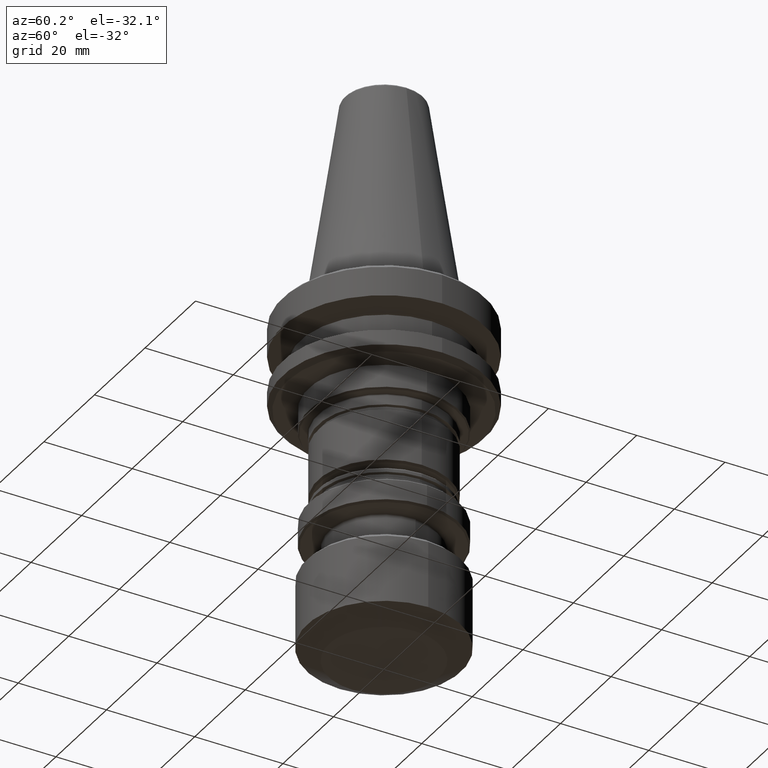
[diagram: clean part render]
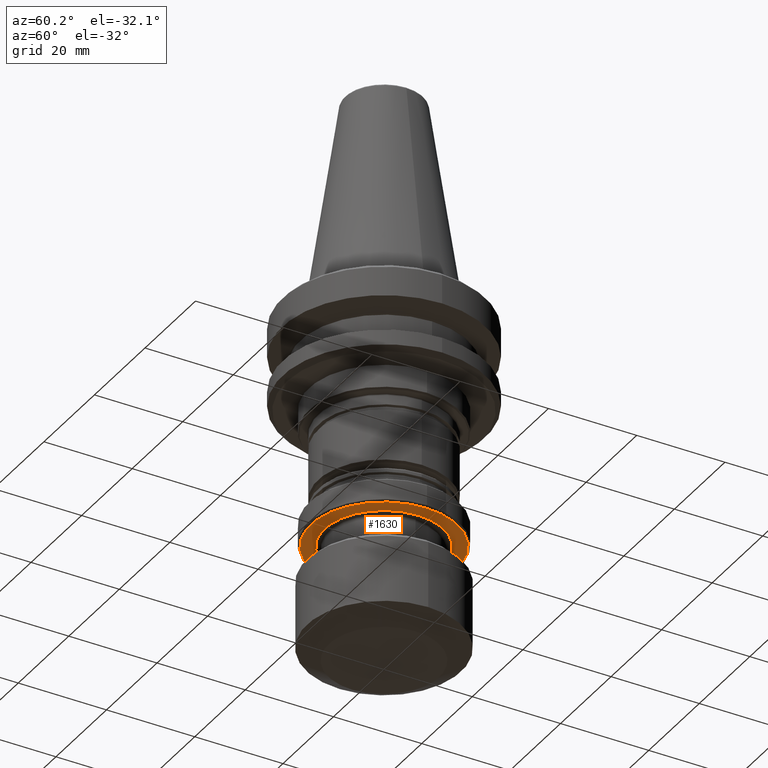
[diagram: same view with one face highlighted and labeled with its STEP entity id]
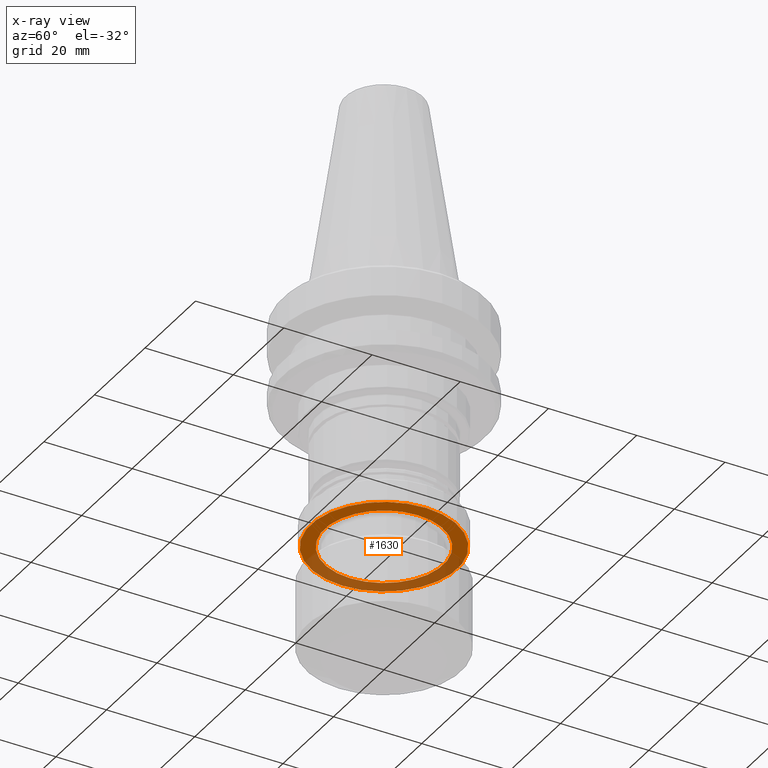
[diagram: x-ray of the same camera — body ghosted, the highlighted face saturated]
A machine part, auxiliary view. The second image highlights one B-rep face of the part: STEP entity #1630.
The next image is the same camera in x-ray: the body ghosted, the highlighted face saturated — about 41% of this face is hidden behind the body in this view.
In plain terms, the highlighted planar face has unit normal (0, 0, -1).
Its self-contained STEP definition (entity closure, byte-faithful):
#111 = AXIS2_PLACEMENT_3D ( 'NONE', #1871, #1109, #1335 ) ;
#126 = ORIENTED_EDGE ( 'NONE', *, *, #1217, .F. ) ;
#195 = CIRCLE ( 'NONE', #1224, 16.59999999999772800 ) ;
#268 = CIRCLE ( 'NONE', #2219, 16.59999999999772800 ) ;
#326 = EDGE_CURVE ( 'NONE', #1941, #1113, #1896, .T. ) ;
#393 = CARTESIAN_POINT ( 'NONE',  ( 16.59999999999772800, 0.0000000000000000000, -53.60000000000009400 ) ) ;
#420 = DIRECTION ( 'NONE',  ( -0.0000000000000000000, -0.0000000000000000000, 1.000000000000000000 ) ) ;
#465 = DIRECTION ( 'NONE',  ( 1.000000000000000000, 0.0000000000000000000, 0.0000000000000000000 ) ) ;
#492 = CIRCLE ( 'NONE', #2116, 13.45000000000229400 ) ;
#511 = EDGE_LOOP ( 'NONE', ( #1784, #824 ) ) ;
#535 = VERTEX_POINT ( 'NONE', #393 ) ;
#736 = DIRECTION ( 'NONE',  ( 1.000000000000000000, 0.0000000000000000000, 0.0000000000000000000 ) ) ;
#824 = ORIENTED_EDGE ( 'NONE', *, *, #2208, .T. ) ;
#972 = VERTEX_POINT ( 'NONE', #1011 ) ;
#984 = EDGE_CURVE ( 'NONE', #535, #972, #195, .T. ) ;
#985 = DIRECTION ( 'NONE',  ( 1.000000000000000000, 0.0000000000000000000, 0.0000000000000000000 ) ) ;
#990 = DIRECTION ( 'NONE',  ( -0.0000000000000000000, -0.0000000000000000000, 1.000000000000000000 ) ) ;
#1011 = CARTESIAN_POINT ( 'NONE',  ( -16.59999999999772800, 2.057406622567285700E-015, -53.60000000000009400 ) ) ;
#1052 = EDGE_LOOP ( 'NONE', ( #2214, #126 ) ) ;
#1067 = AXIS2_PLACEMENT_3D ( 'NONE', #2059, #2135, #985 ) ;
#1109 = DIRECTION ( 'NONE',  ( 0.0000000000000000000, 0.0000000000000000000, -1.000000000000000000 ) ) ;
#1113 = VERTEX_POINT ( 'NONE', #2110 ) ;
#1217 = EDGE_CURVE ( 'NONE', #972, #535, #268, .T. ) ;
#1224 = AXIS2_PLACEMENT_3D ( 'NONE', #1906, #420, #465 ) ;
#1234 = PLANE ( 'NONE',  #111 ) ;
#1243 = DIRECTION ( 'NONE',  ( -0.0000000000000000000, -0.0000000000000000000, 1.000000000000000000 ) ) ;
#1252 = CARTESIAN_POINT ( 'NONE',  ( 0.0000000000000000000, 0.0000000000000000000, -53.60000000000009400 ) ) ;
#1335 = DIRECTION ( 'NONE',  ( -1.000000000000000000, 0.0000000000000000000, -0.0000000000000000000 ) ) ;
#1383 = CARTESIAN_POINT ( 'NONE',  ( 13.45000000000218200, 0.0000000000000000000, -53.59999999999984500 ) ) ;
#1615 = FACE_OUTER_BOUND ( 'NONE', #1052, .T. ) ;
#1630 = ADVANCED_FACE ( 'NONE', ( #1910, #1615 ), #1234, .T. ) ;
#1675 = CARTESIAN_POINT ( 'NONE',  ( 0.0000000000000000000, 0.0000000000000000000, -53.60000000000009400 ) ) ;
#1784 = ORIENTED_EDGE ( 'NONE', *, *, #326, .T. ) ;
#1871 = CARTESIAN_POINT ( 'NONE',  ( 0.0000000000000000000, 0.0000000000000000000, -53.60000000000009400 ) ) ;
#1896 = CIRCLE ( 'NONE', #1067, 13.45000000000229400 ) ;
#1906 = CARTESIAN_POINT ( 'NONE',  ( 0.0000000000000000000, 0.0000000000000000000, -53.60000000000009400 ) ) ;
#1910 = FACE_BOUND ( 'NONE', #511, .T. ) ;
#1941 = VERTEX_POINT ( 'NONE', #1383 ) ;
#2016 = DIRECTION ( 'NONE',  ( 1.000000000000000000, 0.0000000000000000000, 0.0000000000000000000 ) ) ;
#2059 = CARTESIAN_POINT ( 'NONE',  ( 0.0000000000000000000, 0.0000000000000000000, -53.60000000000009400 ) ) ;
#2110 = CARTESIAN_POINT ( 'NONE',  ( -13.45000000000218200, 1.647149944853457400E-015, -53.59999999999984500 ) ) ;
#2116 = AXIS2_PLACEMENT_3D ( 'NONE', #1675, #990, #2016 ) ;
#2135 = DIRECTION ( 'NONE',  ( -0.0000000000000000000, -0.0000000000000000000, 1.000000000000000000 ) ) ;
#2208 = EDGE_CURVE ( 'NONE', #1113, #1941, #492, .T. ) ;
#2214 = ORIENTED_EDGE ( 'NONE', *, *, #984, .F. ) ;
#2219 = AXIS2_PLACEMENT_3D ( 'NONE', #1252, #1243, #736 ) ;